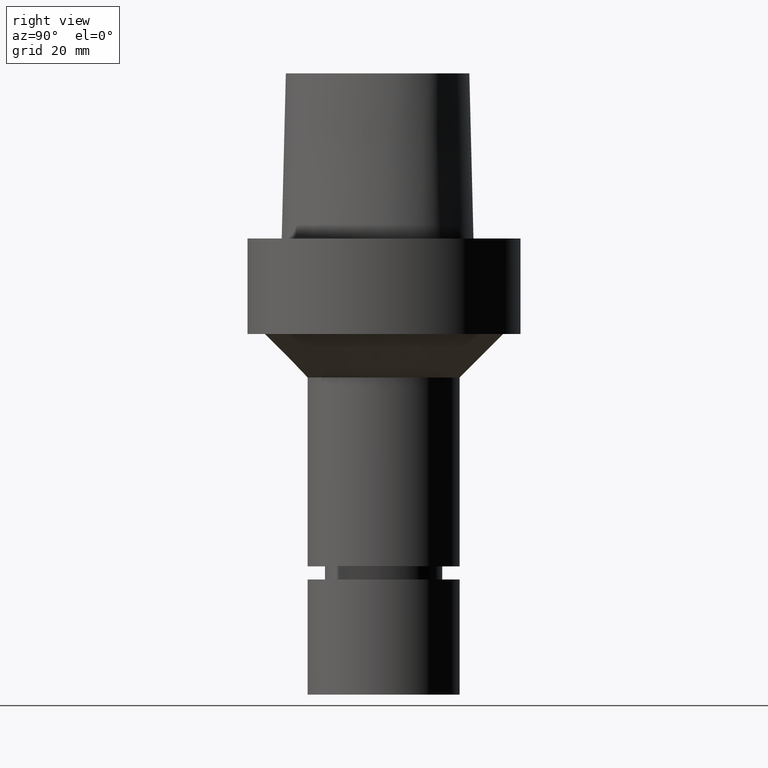
[diagram: clean part render]
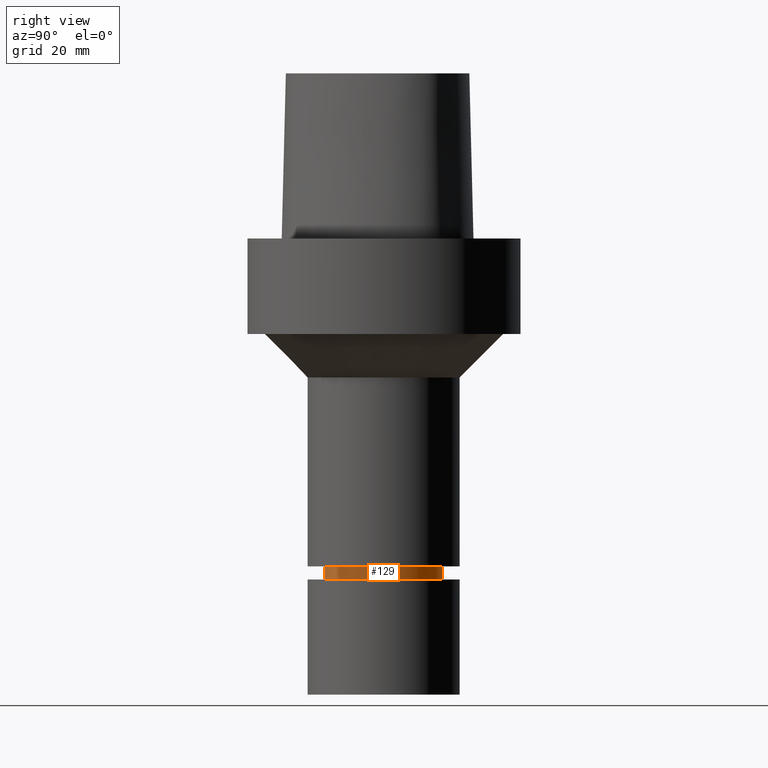
[diagram: same view with one face highlighted and labeled with its STEP entity id]
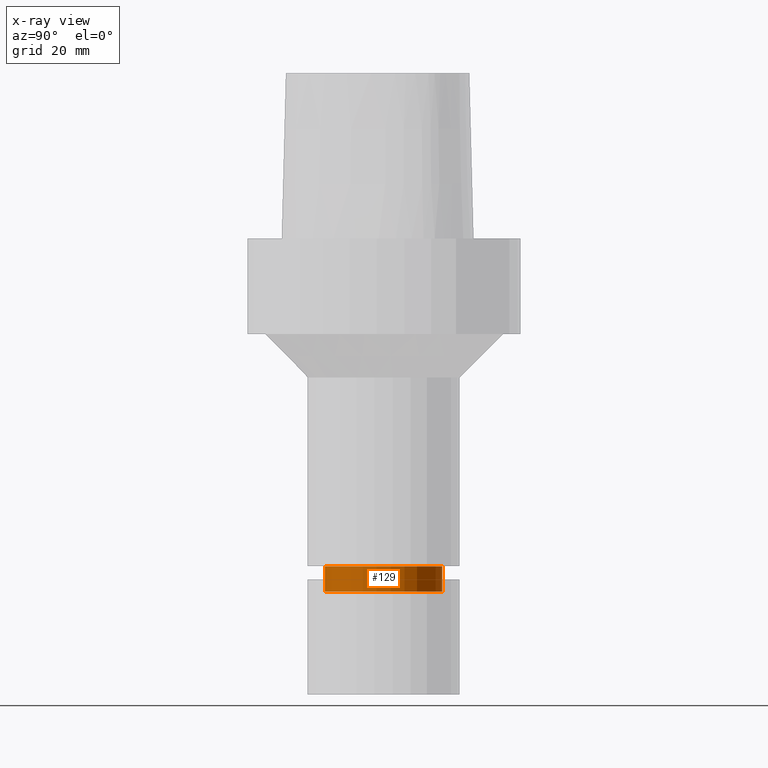
[diagram: x-ray of the same camera — body ghosted, the highlighted face saturated]
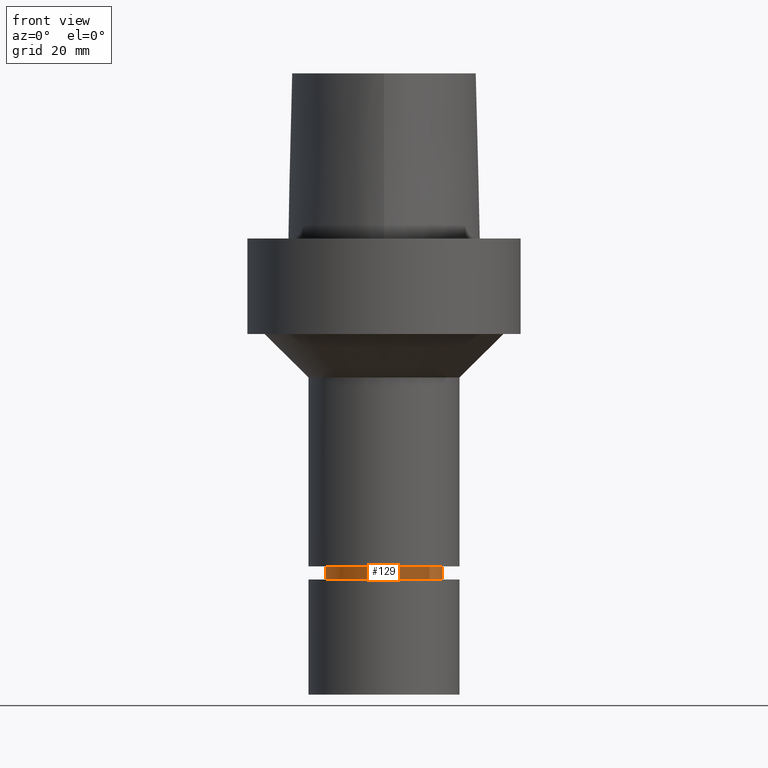
[diagram: same view with one face highlighted and labeled with its STEP entity id]
A machine part, right view. The second image highlights one B-rep face of the part: STEP entity #129.
The next image is the same camera in x-ray: the body ghosted, the highlighted face saturated — about 0% of this face is hidden behind the body in this view.
A second angle (front view) of the same face is appended — the face is thin or edge-on in the first view.
In plain terms, the highlighted cylindrical surface (bore or boss wall) has radius 13.5 mm, axis along (0, 0, -1).
Its self-contained STEP definition (entity closure, byte-faithful):
#87=EDGE_CURVE('Unnamed[1]',#214,#214,#215,.T.);
#129=ADVANCED_FACE('Unnamed[1]',(#275,#276),#277,.T.);
#133=EDGE_CURVE('Unnamed[1]',#282,#282,#283,.T.);
#214=VERTEX_POINT('',#378);
#215=CIRCLE('',#379,13.4999999999908);
#275=FACE_BOUND('',#558,.T.);
#276=FACE_BOUND('',#559,.T.);
#277=CYLINDRICAL_SURFACE('',#560,13.4999999999956);
#282=VERTEX_POINT('',#568);
#283=CIRCLE('',#569,13.5000000000005);
#378=CARTESIAN_POINT('',(4.62304166678125E-015,13.4999999999908,-75.4999999999998));
#379=AXIS2_PLACEMENT_3D('',#762,#763,#764);
#558=EDGE_LOOP('',(#822));
#559=EDGE_LOOP('',(#823));
#560=AXIS2_PLACEMENT_3D('',#824,#825,#826);
#568=CARTESIAN_POINT('',(4.97955624228199E-015,13.5000000000005,-81.3223248654052));
#569=AXIS2_PLACEMENT_3D('',#828,#829,#830);
#762=CARTESIAN_POINT('',(4.62304166678125E-015,9.24608333356249E-015,-75.4999999999998));
#763=DIRECTION('',(6.12323399573677E-017,1.22464679914735E-016,-1.0));
#764=DIRECTION('',(-1.23259516440783E-032,1.0,1.22464679914735E-016));
#822=ORIENTED_EDGE('',*,*,#133,.F.);
#823=ORIENTED_EDGE('',*,*,#87,.T.);
#824=CARTESIAN_POINT('',(4.80129895453162E-015,9.60259790906323E-015,-78.4111624327025));
#825=DIRECTION('',(6.12323399573677E-017,1.22464679914735E-016,-1.0));
#826=DIRECTION('',(-1.23259516440783E-032,1.0,1.22464679914735E-016));
#828=CARTESIAN_POINT('',(4.97955624228199E-015,9.95911248456397E-015,-81.3223248654052));
#829=DIRECTION('',(6.12323399573677E-017,1.22464679914735E-016,-1.0));
#830=DIRECTION('',(-1.23259516440783E-032,1.0,1.22464679914735E-016));